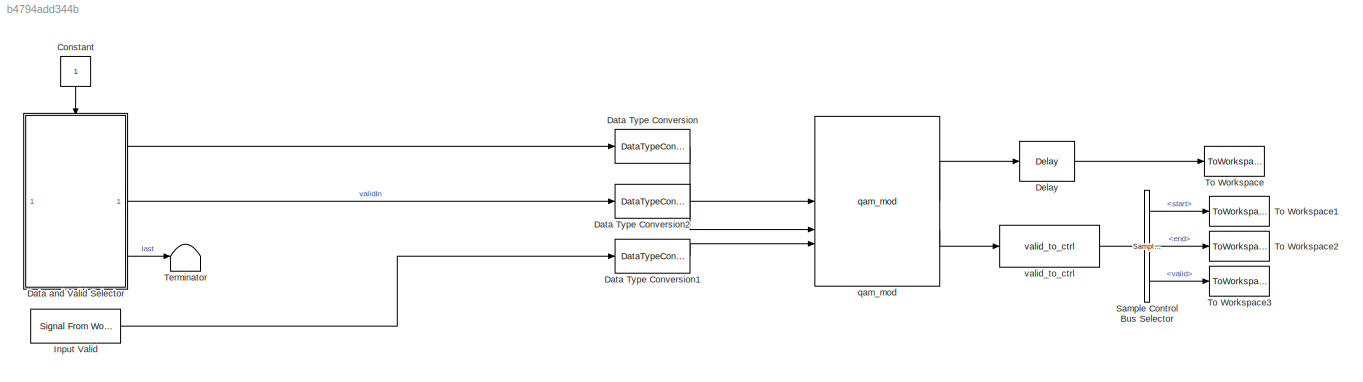
MODEL slx_b4794add344b
KIND model
CONFIG AbsTol = auto
CONFIG EnableMultiTasking = off
CONFIG FixedStep = auto
CONFIG MaxStep = auto
CONFIG MinStep = auto
CONFIG RelTol = 1e-3
CONFIG SampleTimeConstraint = Unconstrained
CONFIG SolverName = VariableStepAuto
CONFIG StartTime = 0.0
CONFIG StopTime = stopTime
WORKSPACE source: mxarray member
WORKSPACE HDLVAXIManagerConfig: hdlverifier.internal.AXIMaster.ConfigParams (value not decoded)
BLOCK [Constant] Constant
  NameLocation = left
  SampleTime = -1
BLOCK [DataTypeConversion] Data Type Conversion
  OutDataTypeStr = fixdt(0,12,0)
  RndMeth = Floor
  SaturateOnIntegerOverflow = off
BLOCK [DataTypeConversion] Data Type Conversion1
  OutDataTypeStr = fixdt(0,4,0)
  RndMeth = Floor
  SaturateOnIntegerOverflow = off
BLOCK [DataTypeConversion] Data Type Conversion2
  OutDataTypeStr = boolean
  RndMeth = Floor
  SaturateOnIntegerOverflow = off
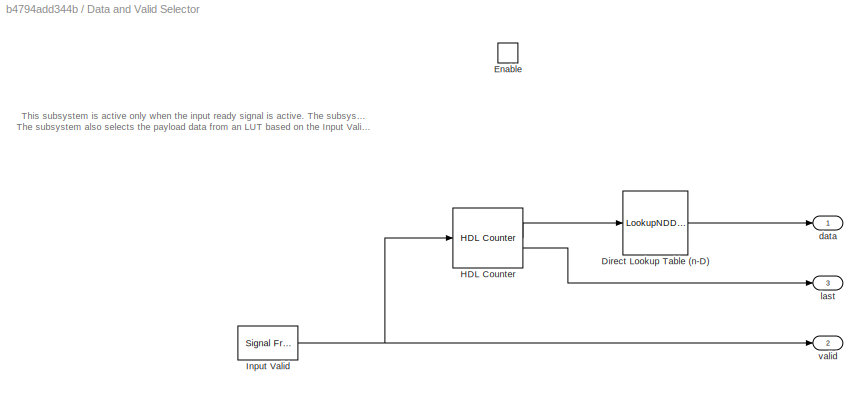
BLOCK [SubSystem] Data and Valid Selector
  TreatAsAtomicUnit = on
BLOCK [LookupNDDirect] Data and Valid Selector/Direct Lookup Table (n-D)
  DiagnosticForOutOfRangeInput = Error
  NumberOfTableDimensions = 1
  Table = dataSymbols
  TableDataTypeStr = fixdt(0,12,0)
BLOCK [EnablePort] Data and Valid Selector/Enable
BLOCK [Reference] Data and Valid Selector/HDL Counter  REF=hdlsllib/Sources/HDL Counter
  SourceBlock = hdlsllib/Sources/HDL Counter
  SourceType = HDL Counter
BLOCK [Reference] Data and Valid Selector/Input Valid  REF=dspsrcs4/Signal From
Workspace
  SourceBlock = dspsrcs4/Signal From\nWorkspace
  SourceType = Signal From Workspace
BLOCK [Outport] Data and Valid Selector/data
  InitialOutput = 0
  VectorParamsAs1DForOutWhenUnconnected = off
BLOCK [Outport] Data and Valid Selector/last
  Port = 3
  VectorParamsAs1DForOutWhenUnconnected = off
BLOCK [Outport] Data and Valid Selector/valid
  InitialOutput = 0
  Port = 2
  VectorParamsAs1DForOutWhenUnconnected = off
BLOCK [Delay] Delay
  DelayLength = 1
  InitialCondition = 0
  InputPortMap = u0
  UseCircularBuffer = on
  UserDataPersistent = on
BLOCK [Reference] Input Valid  REF=dspsrcs4/Signal From
Workspace
  SourceBlock = dspsrcs4/Signal From\nWorkspace
  SourceType = Signal From Workspace
BLOCK [Reference] Sample Control Bus Selector  REF=whdlutilities/Sample Control
Bus Selector
  SourceBlock = whdlutilities/Sample Control\nBus Selector
BLOCK [Terminator] Terminator
BLOCK [ToWorkspace] To Workspace
  MaxDataPoints = inf
  SampleTime = 1/CONST.fs
  Save2DSignal = 2-D array (concatenate along first dimension)
  VariableName = dataOut
BLOCK [ToWorkspace] To Workspace1
  MaxDataPoints = inf
  SampleTime = 1/CONST.fs
  Save2DSignal = 2-D array (concatenate along first dimension)
  VariableName = startOut
BLOCK [ToWorkspace] To Workspace2
  MaxDataPoints = inf
  SampleTime = 1/CONST.fs
  Save2DSignal = 2-D array (concatenate along first dimension)
  VariableName = endOut
BLOCK [ToWorkspace] To Workspace3
  MaxDataPoints = inf
  SampleTime = 1/CONST.fs
  Save2DSignal = 2-D array (concatenate along first dimension)
  VariableName = validOut
BLOCK [Reference] qam_mod  REF=HDL_ieee_8021513/qam_mod
  SourceBlock = HDL_ieee_8021513/qam_mod
  SourceProductName = HDL IEEE 8021513
  SourceType = SubSystem
BLOCK [Reference] valid_to_ctrl  REF=HDL_ieee_8021513/valid_to_ctrl
  SourceBlock = HDL_ieee_8021513/valid_to_ctrl
  SourceProductName = HDL IEEE 8021513
  SourceType = SubSystem
ANNOTATION Data and Valid Selector: This subsystem is active only when the input ready signal is active. The subsystem selects the Input Valid value and outputs the valid signal. The subsystem also selects the payload data from an LUT based on the Input Valid signal and outputs it as data signal.
LINE Constant:1 -> Data and Valid Selector:enable
LINE Data Type Conversion1:1 -> qam_mod:3
LINE Data Type Conversion2:1 -> qam_mod:2
LINE Data Type Conversion:1 -> qam_mod:1
LINE Data and Valid Selector/Direct Lookup Table (n-D):1 -> Data and Valid Selector/data:1
LINE Data and Valid Selector/HDL Counter:1 -> Data and Valid Selector/Direct Lookup Table (n-D):1
LINE Data and Valid Selector/HDL Counter:2 -> Data and Valid Selector/last:1
NET Data and Valid Selector/Input Valid:1 -> Data and Valid Selector/HDL Counter:1, Data and Valid Selector/valid:1
LINE Data and Valid Selector:1 -> Data Type Conversion:1
LINE Data and Valid Selector:2 -> Data Type Conversion2:1
LINE Data and Valid Selector:3 -> Terminator:1
LINE Delay:1 -> To Workspace:1
LINE Input Valid:1 -> Data Type Conversion1:1
LINE Sample Control Bus Selector:1 -> To Workspace1:1
LINE Sample Control Bus Selector:2 -> To Workspace2:1
LINE Sample Control Bus Selector:3 -> To Workspace3:1
LINE qam_mod:1 -> Delay:1
LINE qam_mod:2 -> valid_to_ctrl:1
LINE valid_to_ctrl:1 -> Sample Control Bus Selector:1
note: NET lines group one-source signal fan-out (src -> all destinations, sorted); 1:1 wires keep LINE
